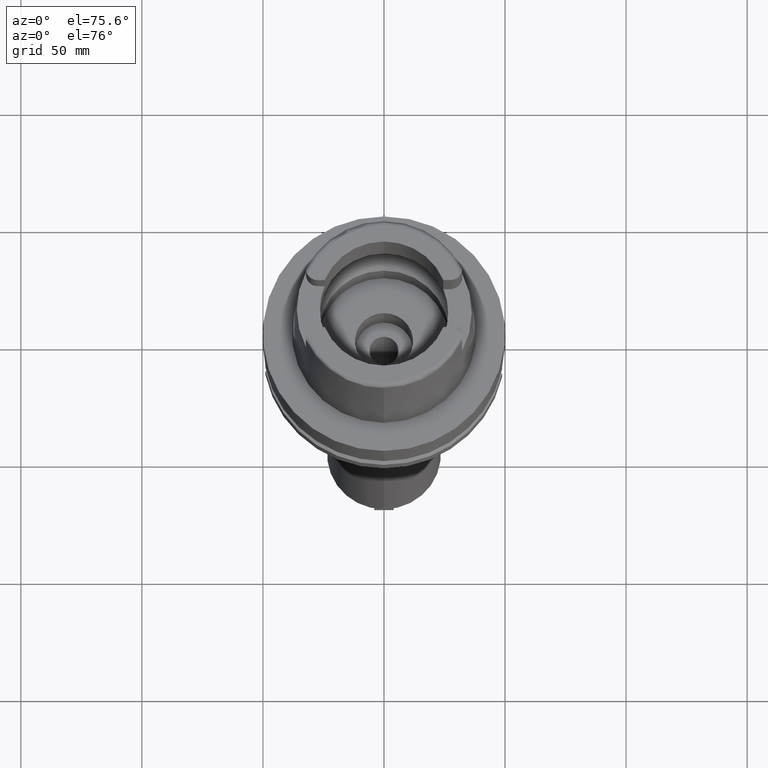
[diagram: clean part render]
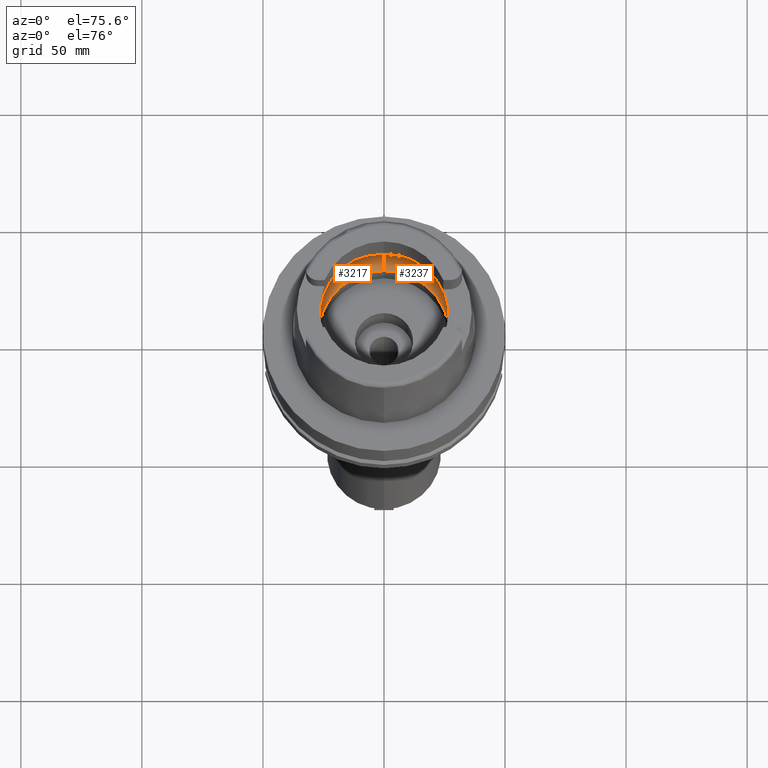
[diagram: same view with one multi-face feature highlighted, each face labeled with its STEP entity id]
A machine part, auxiliary view. The highlighted faces form ONE feature: a constant-radius fillet chain: 2 tangent blend faces with common blend radius 12 mm. The faces share edges in the B-rep.
Their STEP definitions:
[1] entity #3217 (Torus):
#577=CARTESIAN_POINT('',(-3.140918884336E1,-2.390158196044E0,9.496624327026E0));
#620=CARTESIAN_POINT('',(-3.140918884336E1,-2.390158196044E0,9.496624327026E0));
#621=CARTESIAN_POINT('',(-3.142817848467E1,-2.140614366329E0,9.388245530937E0));
#622=CARTESIAN_POINT('',(-3.145843724500E1,-1.626023551083E0,9.205156904102E0));
#623=CARTESIAN_POINT('',(-3.148416960718E1,-8.214762204955E-1,
9.037587027959E0));
#624=CARTESIAN_POINT('',(-3.148971910754E1,-2.740162681909E-1,9.E0));
#625=CARTESIAN_POINT('',(-3.148971910754E1,0.E0,9.E0));
#630=CARTESIAN_POINT('',(-3.148971910754E1,0.E0,9.E0));
#631=CARTESIAN_POINT('',(-3.148971910754E1,2.740165669665E-1,9.E0));
#632=CARTESIAN_POINT('',(-3.148416962018E1,8.214769982256E-1,9.037586954605E0));
#633=CARTESIAN_POINT('',(-3.145843702194E1,1.626028819033E0,9.205158323105E0));
#634=CARTESIAN_POINT('',(-3.142817832063E1,2.140616521958E0,9.388246467142E0));
#635=CARTESIAN_POINT('',(-3.140918884336E1,2.390158196044E0,9.496624327026E0));
#640=CARTESIAN_POINT('',(0.E0,0.E0,9.496624327026E0));
#641=DIRECTION('',(0.E0,0.E0,-1.E0));
#642=DIRECTION('',(-9.971171061384E-1,7.587803796965E-2,0.E0));
#643=AXIS2_PLACEMENT_3D('',#640,#641,#642);
#648=CARTESIAN_POINT('',(0.E0,0.E0,4.993178413022E-2));
#649=DIRECTION('',(0.E0,0.E0,1.E0));
#650=DIRECTION('',(0.E0,1.E0,0.E0));
#651=AXIS2_PLACEMENT_3D('',#648,#649,#650);
#656=CARTESIAN_POINT('',(0.E0,-1.95E1,9.496624327026E0));
#657=DIRECTION('',(-1.E0,0.E0,0.E0));
#658=DIRECTION('',(0.E0,-6.166666666667E-1,-7.872243785746E-1));
#659=AXIS2_PLACEMENT_3D('',#656,#657,#658);
#664=CARTESIAN_POINT('',(0.E0,0.E0,9.496624327026E0));
#665=DIRECTION('',(0.E0,0.E0,-1.E0));
#666=DIRECTION('',(0.E0,-1.E0,0.E0));
#667=AXIS2_PLACEMENT_3D('',#664,#665,#666);
#698=CARTESIAN_POINT('',(0.E0,1.95E1,9.496624327026E0));
#699=DIRECTION('',(1.E0,0.E0,0.E0));
#700=DIRECTION('',(0.E0,6.166666666667E-1,-7.872243785746E-1));
#701=AXIS2_PLACEMENT_3D('',#698,#699,#700);
#2531=VERTEX_POINT('',#577);
#2532=CARTESIAN_POINT('',(0.E0,-3.15E1,9.496624327026E0));
#2533=VERTEX_POINT('',#2532);
#2534=CARTESIAN_POINT('',(0.E0,3.15E1,9.496624327026E0));
#2535=VERTEX_POINT('',#2534);
#2536=CARTESIAN_POINT('',(-3.140918884336E1,2.390158196044E0,9.496624327026E0));
#2537=VERTEX_POINT('',#2536);
#2538=CARTESIAN_POINT('',(-3.148971910754E1,0.E0,9.E0));
#2539=VERTEX_POINT('',#2538);
#2544=CARTESIAN_POINT('',(0.E0,2.69E1,4.993178413023E-2));
#2545=VERTEX_POINT('',#2544);
#2546=CARTESIAN_POINT('',(0.E0,-2.69E1,4.993178413022E-2));
#2547=VERTEX_POINT('',#2546);
#3200=CARTESIAN_POINT('',(0.E0,0.E0,9.496624327026E0));
#3201=DIRECTION('',(0.E0,0.E0,1.E0));
#3202=DIRECTION('',(0.E0,1.E0,0.E0));
#3203=AXIS2_PLACEMENT_3D('',#3200,#3201,#3202);
#3204=TOROIDAL_SURFACE('',#3203,1.95E1,1.2E1);
#3205=ORIENTED_EDGE('',*,*,#3181,.T.);
#3206=ORIENTED_EDGE('',*,*,#3192,.T.);
#3207=ORIENTED_EDGE('',*,*,#3163,.T.);
#3209=ORIENTED_EDGE('',*,*,#3208,.F.);
#3211=ORIENTED_EDGE('',*,*,#3210,.T.);
#3213=ORIENTED_EDGE('',*,*,#3212,.T.);
#3214=ORIENTED_EDGE('',*,*,#3156,.T.);
#3215=EDGE_LOOP('',(#3205,#3206,#3207,#3209,#3211,#3213,#3214));
#3216=FACE_OUTER_BOUND('',#3215,.F.);
#626=B_SPLINE_CURVE_WITH_KNOTS('',3,(#620,#621,#622,#623,#624,#625),
.UNSPECIFIED.,.F.,.F.,(4,1,1,4),(0.E0,3.333333333333E-1,6.666666666667E-1,1.E0),
.UNSPECIFIED.);
#636=B_SPLINE_CURVE_WITH_KNOTS('',3,(#630,#631,#632,#633,#634,#635),
.UNSPECIFIED.,.F.,.F.,(4,1,1,4),(0.E0,3.333333333333E-1,6.666666666667E-1,1.E0),
.UNSPECIFIED.);
#644=CIRCLE('',#643,3.15E1);
#652=CIRCLE('',#651,2.69E1);
#660=CIRCLE('',#659,1.2E1);
#668=CIRCLE('',#667,3.15E1);
#702=CIRCLE('',#701,1.2E1);
#3156=EDGE_CURVE('',#2533,#2531,#668,.T.);
#3163=EDGE_CURVE('',#2537,#2535,#644,.T.);
#3181=EDGE_CURVE('',#2531,#2539,#626,.T.);
#3192=EDGE_CURVE('',#2539,#2537,#636,.T.);
#3208=EDGE_CURVE('',#2545,#2535,#702,.T.);
#3210=EDGE_CURVE('',#2545,#2547,#652,.T.);
#3212=EDGE_CURVE('',#2547,#2533,#660,.T.);
#3217=ADVANCED_FACE('',(#3216),#3204,.F.);
[2] entity #3237 (Torus):
#656=CARTESIAN_POINT('',(0.E0,-1.95E1,9.496624327026E0));
#657=DIRECTION('',(-1.E0,0.E0,0.E0));
#658=DIRECTION('',(0.E0,-6.166666666667E-1,-7.872243785746E-1));
#659=AXIS2_PLACEMENT_3D('',#656,#657,#658);
#672=CARTESIAN_POINT('',(3.148971910754E1,0.E0,9.E0));
#673=CARTESIAN_POINT('',(3.148971910754E1,-2.740169050541E-1,9.E0));
#674=CARTESIAN_POINT('',(3.148416957998E1,-8.214776976887E-1,9.037587211562E0));
#675=CARTESIAN_POINT('',(3.145843718743E1,-1.626024717401E0,9.205157265854E0));
#676=CARTESIAN_POINT('',(3.142817844845E1,-2.140614842228E0,9.388245737623E0));
#677=CARTESIAN_POINT('',(3.140918884336E1,-2.390158196044E0,9.496624327026E0));
#682=CARTESIAN_POINT('',(0.E0,0.E0,9.496624327026E0));
#683=DIRECTION('',(0.E0,0.E0,-1.E0));
#684=DIRECTION('',(9.971171061384E-1,-7.587803796965E-2,0.E0));
#685=AXIS2_PLACEMENT_3D('',#682,#683,#684);
#690=CARTESIAN_POINT('',(0.E0,0.E0,4.993178413023E-2));
#691=DIRECTION('',(0.E0,0.E0,1.E0));
#692=DIRECTION('',(0.E0,-1.E0,0.E0));
#693=AXIS2_PLACEMENT_3D('',#690,#691,#692);
#698=CARTESIAN_POINT('',(0.E0,1.95E1,9.496624327026E0));
#699=DIRECTION('',(1.E0,0.E0,0.E0));
#700=DIRECTION('',(0.E0,6.166666666667E-1,-7.872243785746E-1));
#701=AXIS2_PLACEMENT_3D('',#698,#699,#700);
#706=CARTESIAN_POINT('',(0.E0,0.E0,9.496624327026E0));
#707=DIRECTION('',(0.E0,0.E0,-1.E0));
#708=DIRECTION('',(0.E0,1.E0,0.E0));
#709=AXIS2_PLACEMENT_3D('',#706,#707,#708);
#714=CARTESIAN_POINT('',(3.140918884336E1,2.390158196044E0,9.496624327026E0));
#715=CARTESIAN_POINT('',(3.142817835740E1,2.140616038809E0,9.388246257307E0));
#716=CARTESIAN_POINT('',(3.145843708024E1,1.626027635001E0,9.205157956654E0));
#717=CARTESIAN_POINT('',(3.148416964729E1,8.214755204284E-1,9.037586771557E0));
#718=CARTESIAN_POINT('',(3.148971910754E1,2.740159299782E-1,9.E0));
#719=CARTESIAN_POINT('',(3.148971910754E1,0.E0,9.E0));
#731=CARTESIAN_POINT('',(3.140918884336E1,-2.390158196044E0,9.496624327026E0));
#760=CARTESIAN_POINT('',(3.140918884336E1,2.390158196044E0,9.496624327026E0));
#2532=CARTESIAN_POINT('',(0.E0,-3.15E1,9.496624327026E0));
#2533=VERTEX_POINT('',#2532);
#2534=CARTESIAN_POINT('',(0.E0,3.15E1,9.496624327026E0));
#2535=VERTEX_POINT('',#2534);
#2540=VERTEX_POINT('',#731);
#2542=VERTEX_POINT('',#672);
#2543=VERTEX_POINT('',#760);
#2544=CARTESIAN_POINT('',(0.E0,2.69E1,4.993178413023E-2));
#2545=VERTEX_POINT('',#2544);
#2546=CARTESIAN_POINT('',(0.E0,-2.69E1,4.993178413022E-2));
#2547=VERTEX_POINT('',#2546);
#3218=CARTESIAN_POINT('',(0.E0,0.E0,9.496624327026E0));
#3219=DIRECTION('',(0.E0,0.E0,1.E0));
#3220=DIRECTION('',(0.E0,1.E0,0.E0));
#3221=AXIS2_PLACEMENT_3D('',#3218,#3219,#3220);
#3222=TOROIDAL_SURFACE('',#3221,1.95E1,1.2E1);
#3224=ORIENTED_EDGE('',*,*,#3223,.T.);
#3226=ORIENTED_EDGE('',*,*,#3225,.T.);
#3227=ORIENTED_EDGE('',*,*,#3212,.F.);
#3229=ORIENTED_EDGE('',*,*,#3228,.T.);
#3230=ORIENTED_EDGE('',*,*,#3208,.T.);
#3232=ORIENTED_EDGE('',*,*,#3231,.T.);
#3234=ORIENTED_EDGE('',*,*,#3233,.T.);
#3235=EDGE_LOOP('',(#3224,#3226,#3227,#3229,#3230,#3232,#3234));
#3236=FACE_OUTER_BOUND('',#3235,.F.);
#660=CIRCLE('',#659,1.2E1);
#678=B_SPLINE_CURVE_WITH_KNOTS('',3,(#672,#673,#674,#675,#676,#677),
.UNSPECIFIED.,.F.,.F.,(4,1,1,4),(0.E0,3.333333333333E-1,6.666666666667E-1,1.E0),
.UNSPECIFIED.);
#686=CIRCLE('',#685,3.15E1);
#694=CIRCLE('',#693,2.69E1);
#702=CIRCLE('',#701,1.2E1);
#710=CIRCLE('',#709,3.15E1);
#720=B_SPLINE_CURVE_WITH_KNOTS('',3,(#714,#715,#716,#717,#718,#719),
.UNSPECIFIED.,.F.,.F.,(4,1,1,4),(0.E0,3.333333333333E-1,6.666666666667E-1,1.E0),
.UNSPECIFIED.);
#3208=EDGE_CURVE('',#2545,#2535,#702,.T.);
#3212=EDGE_CURVE('',#2547,#2533,#660,.T.);
#3223=EDGE_CURVE('',#2542,#2540,#678,.T.);
#3225=EDGE_CURVE('',#2540,#2533,#686,.T.);
#3228=EDGE_CURVE('',#2547,#2545,#694,.T.);
#3231=EDGE_CURVE('',#2535,#2543,#710,.T.);
#3233=EDGE_CURVE('',#2543,#2542,#720,.T.);
#3237=ADVANCED_FACE('',(#3236),#3222,.F.);